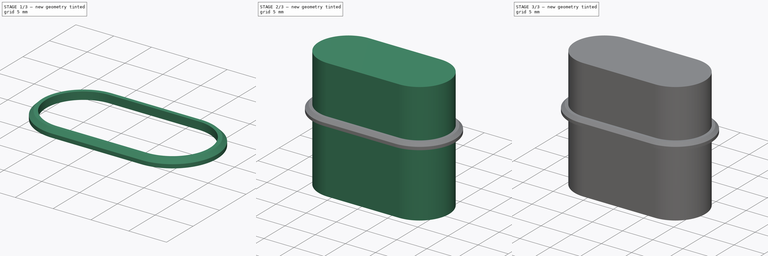
[diagram: build sequence overview — one tinted view per stage of 3, left to right]
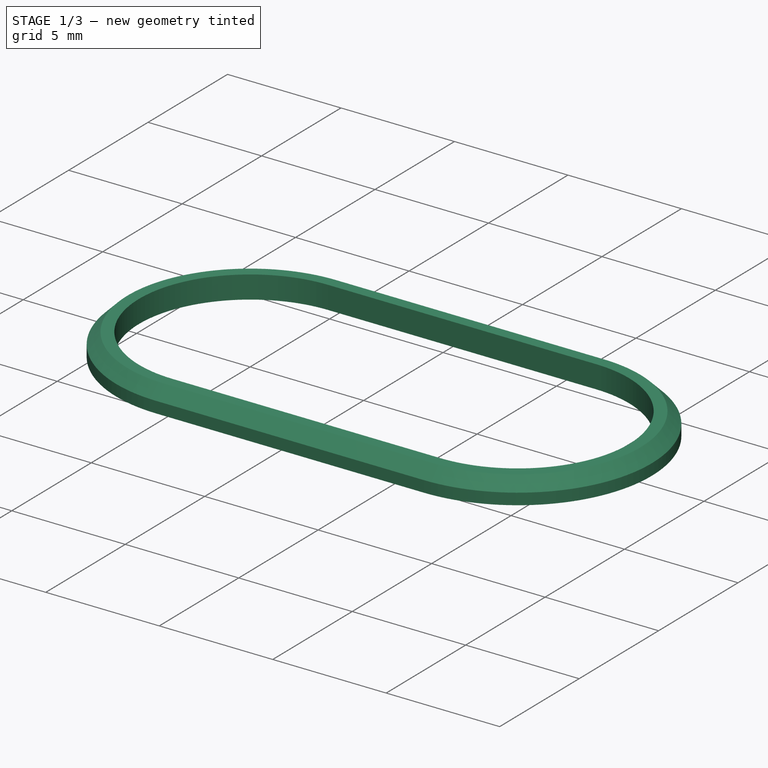
[diagram: stage 1 of 3 — iso view after this stage's code; geometry added in this stage tinted green]
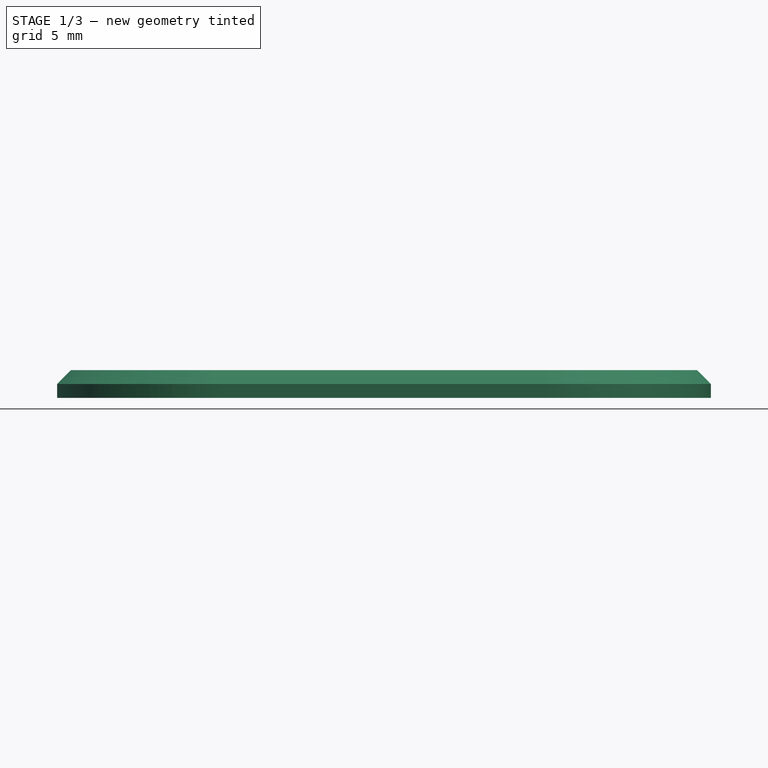
[diagram: stage 1 of 3 — front view after this stage's code; geometry added in this stage tinted green]
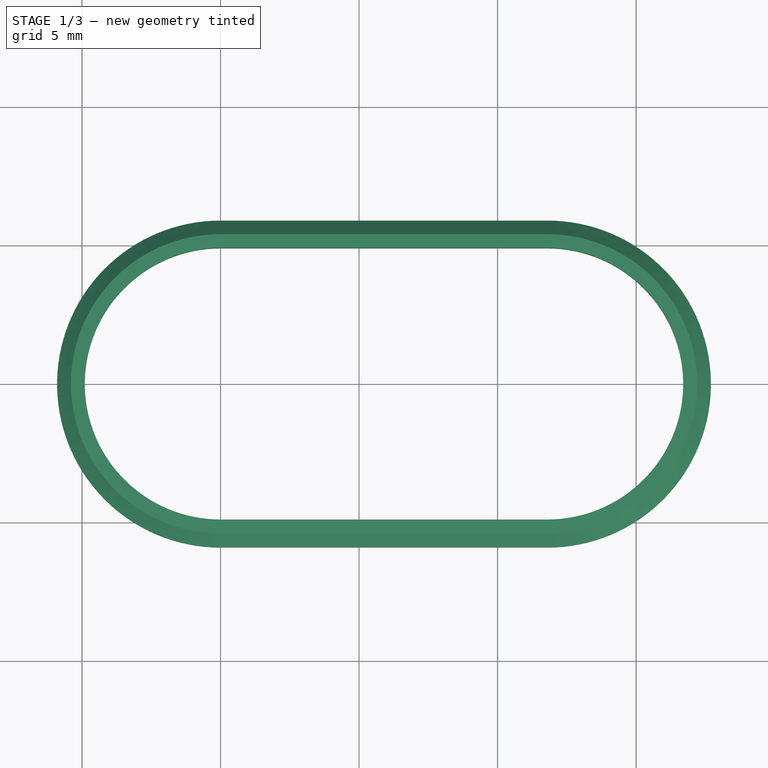
[diagram: stage 1 of 3 — top view after this stage's code; geometry added in this stage tinted green]
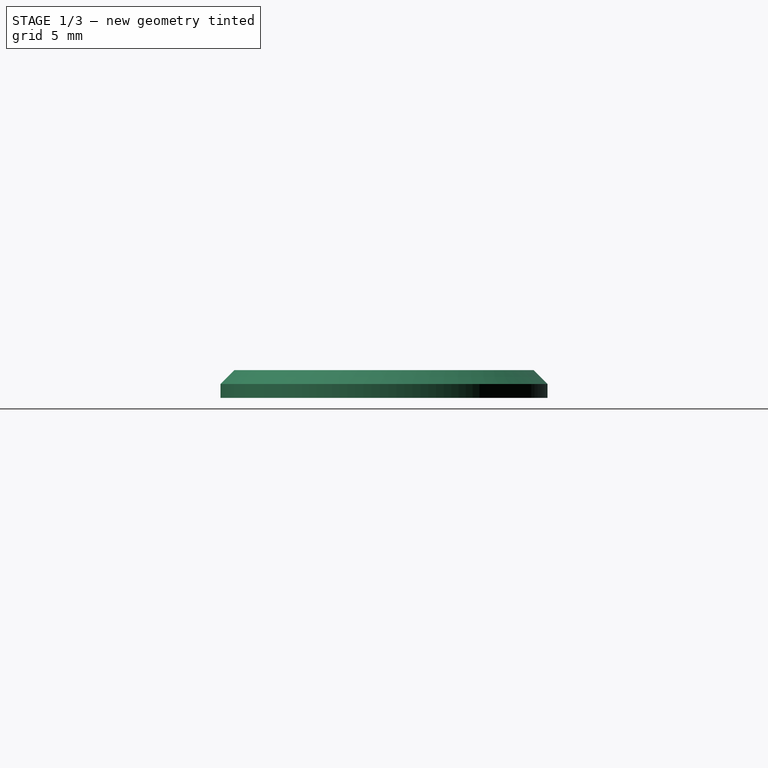
[diagram: stage 1 of 3 — right view after this stage's code; geometry added in this stage tinted green]
FCSTD DOCUMENT  (FreeCAD 0.16R6712 (Git))
Label: response-led-cap
License: All rights reserved
LicenseURL: http://en.wikipedia.org/wiki/All_rights_reserved
objects: Sketcher::SketchObject×4, PartDesign::Pad×2, PartDesign::Pocket×1, PartDesign::Chamfer×1, Part::MultiFuse×1
note: 12 computed .brp shape members not serialized (recipe doc carries the construction recipe); baked Part::Feature solids carry a one-line shape summary decoded from their .brp

FEATURE [Sketcher::SketchObject] Sketch002
  ExternalGeometry = -> [Pocket]
  Placement = pos=(0,0,20) rot=(0,0,1;0rad)
  Support = -> Pocket [Face5]
  constraints (2):
    c: DistanceX(g-1,g-5) = 11.8
    c: DistanceY(g-4,g-3) = 9.8
FEATURE [Sketcher::SketchObject] Sketch003
  Placement = pos=(0,0,11) rot=(0,0,1;0rad)
  sketch-geometry (8):
    g0: ArcOfCircle CenterX=0 CenterY=0 CenterZ=0 NormalX=0 NormalY=0 NormalZ=1 Radius=4.9 StartAngle=1.5708 EndAngle=4.71239
    g1: ArcOfCircle CenterX=11.8 CenterY=0 CenterZ=0 NormalX=0 NormalY=0 NormalZ=1 Radius=4.9 StartAngle=4.71239 EndAngle=7.85398
    g2: LineSegment StartX=0 StartY=-4.9 StartZ=0 EndX=11.8 EndY=-4.9 EndZ=0
    g3: LineSegment StartX=0 StartY=4.9 StartZ=0 EndX=11.8 EndY=4.9 EndZ=0
    g4: ArcOfCircle CenterX=0 CenterY=0 CenterZ=0 NormalX=0 NormalY=0 NormalZ=1 Radius=5.9 StartAngle=1.5708 EndAngle=4.71239
    g5: ArcOfCircle CenterX=11.8 CenterY=0 CenterZ=0 NormalX=0 NormalY=0 NormalZ=1 Radius=5.9 StartAngle=4.71239 EndAngle=7.85398
    g6: LineSegment StartX=0 StartY=-5.9 StartZ=0 EndX=11.8 EndY=-5.9 EndZ=0
    g7: LineSegment StartX=0 StartY=5.9 StartZ=0 EndX=11.8 EndY=5.9 EndZ=0
  constraints (18):
    c: Tangent(g0,g3) = 1.5708
    c: Tangent(g0,g2) = -1.5708
    c: Tangent(g2,g1) = -1.5708
    c: Tangent(g3,g1) = 1.5708
    c: Horizontal(g2)
    c: Equal(g0,g1)
    c: Coincident(g0,g-1)
    c: DistanceX(g-1,g1) = 11.8
    c: DistanceY(g0,g0) = 9.8
    c: Tangent(g4,g7) = 1.5708
    c: Tangent(g4,g6) = -1.5708
    c: Tangent(g6,g5) = -1.5708
    c: Tangent(g7,g5) = 1.5708
    c: Horizontal(g6)
    c: Equal(g4,g5)
    c: Coincident(g4,g-1)
    c: DistanceY(g0,g4) = 1
    c: Coincident(g5,g1)
FEATURE [PartDesign::Pad] Pad001
  Length = 1
  Length2 = 100
  Placement = pos=(0,0,11) rot=(0,0,1;0rad)
  Sketch = -> Sketch003
  Type = 0
FEATURE [PartDesign::Chamfer] Chamfer
  Base = -> Pad001 [Edge7,Edge4,Edge10,Edge12]
  Placement = pos=(0,0,11) rot=(0,0,1;0rad)
  Size = 0.5
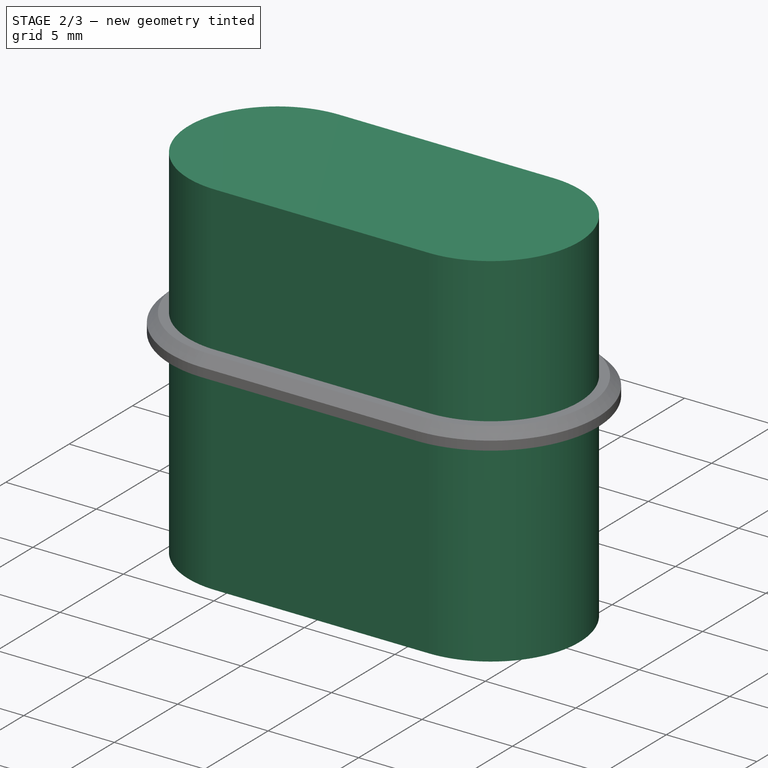
[diagram: stage 2 of 3 — iso view after this stage's code; geometry added in this stage tinted green]
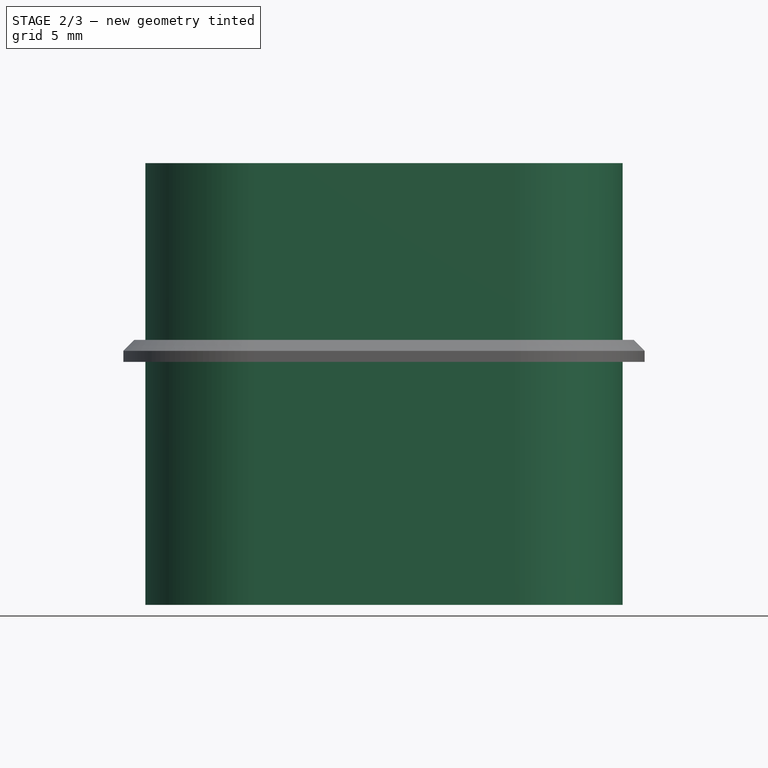
[diagram: stage 2 of 3 — front view after this stage's code; geometry added in this stage tinted green]
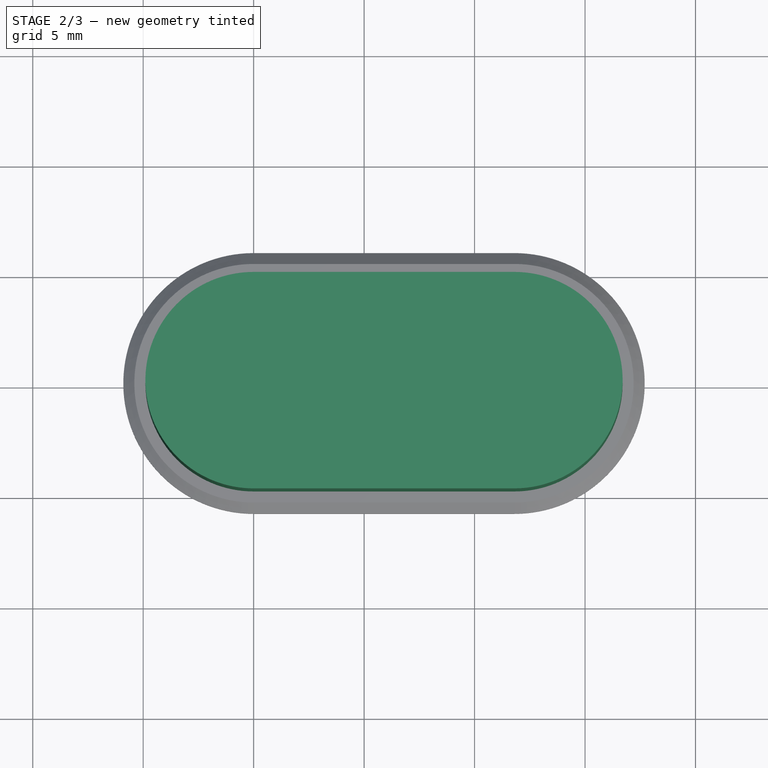
[diagram: stage 2 of 3 — top view after this stage's code; geometry added in this stage tinted green]
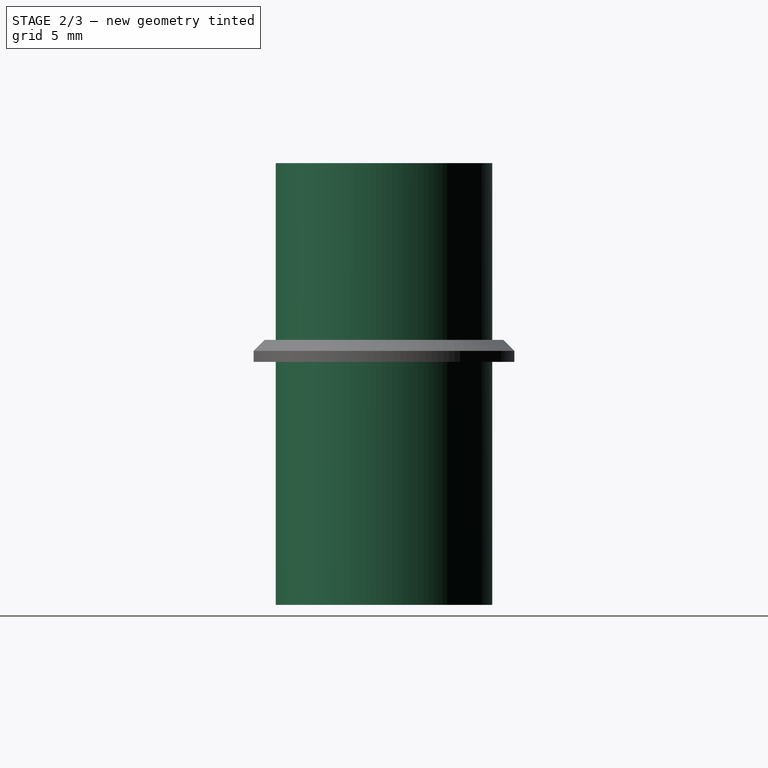
[diagram: stage 2 of 3 — right view after this stage's code; geometry added in this stage tinted green]
FEATURE [Sketcher::SketchObject] Sketch
  sketch-geometry (4):
    g0: ArcOfCircle CenterX=0 CenterY=0 CenterZ=0 NormalX=0 NormalY=0 NormalZ=1 Radius=4.9 StartAngle=1.5708 EndAngle=4.71239
    g1: ArcOfCircle CenterX=11.8 CenterY=0 CenterZ=0 NormalX=0 NormalY=0 NormalZ=1 Radius=4.9 StartAngle=4.71239 EndAngle=7.85398
    g2: LineSegment StartX=0 StartY=-4.9 StartZ=0 EndX=11.8 EndY=-4.9 EndZ=0
    g3: LineSegment StartX=-1e-12 StartY=4.9 StartZ=0 EndX=11.8 EndY=4.9 EndZ=0
  constraints (9):
    c: Tangent(g0,g3) = 1.5708
    c: Tangent(g0,g2) = -1.5708
    c: Tangent(g2,g1) = -1.5708
    c: Tangent(g3,g1) = 1.5708
    c: Horizontal(g2)
    c: Equal(g0,g1)
    c: Coincident(g0,g-1)
    c: DistanceY(g0,g0) = 9.8
    c: DistanceX(g-1,g1) = 11.8
FEATURE [PartDesign::Pad] Pad
  Length = 20
  Length2 = 100
  Sketch = -> Sketch
  Type = 0
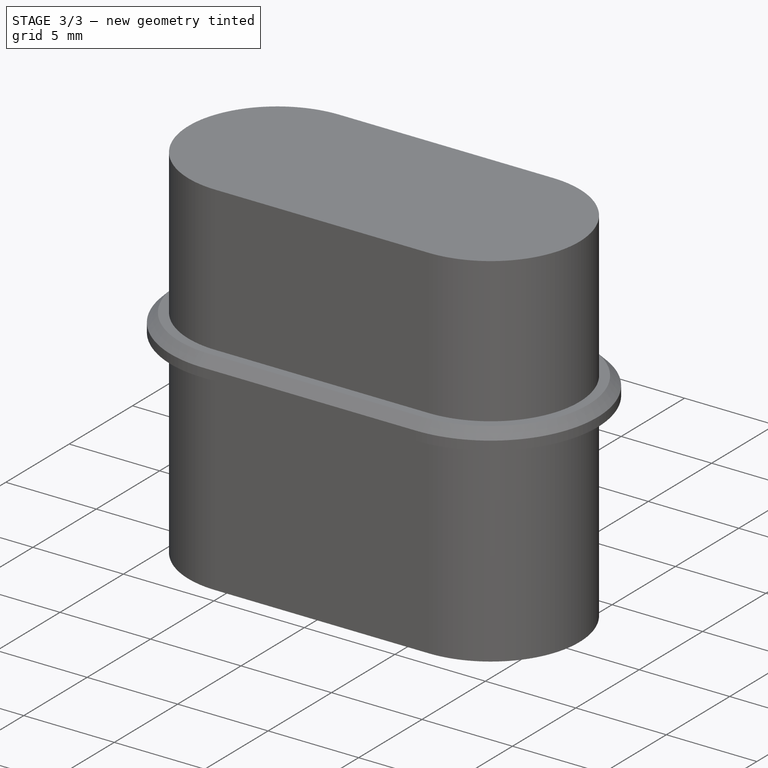
[diagram: stage 3 of 3 — iso view after this stage's code; geometry added in this stage tinted green]
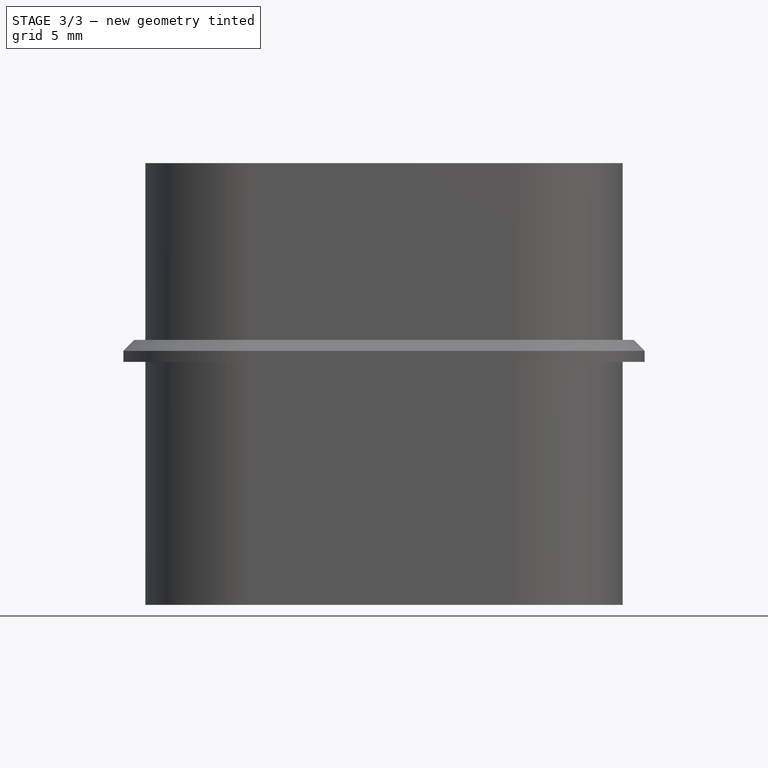
[diagram: stage 3 of 3 — front view after this stage's code; geometry added in this stage tinted green]
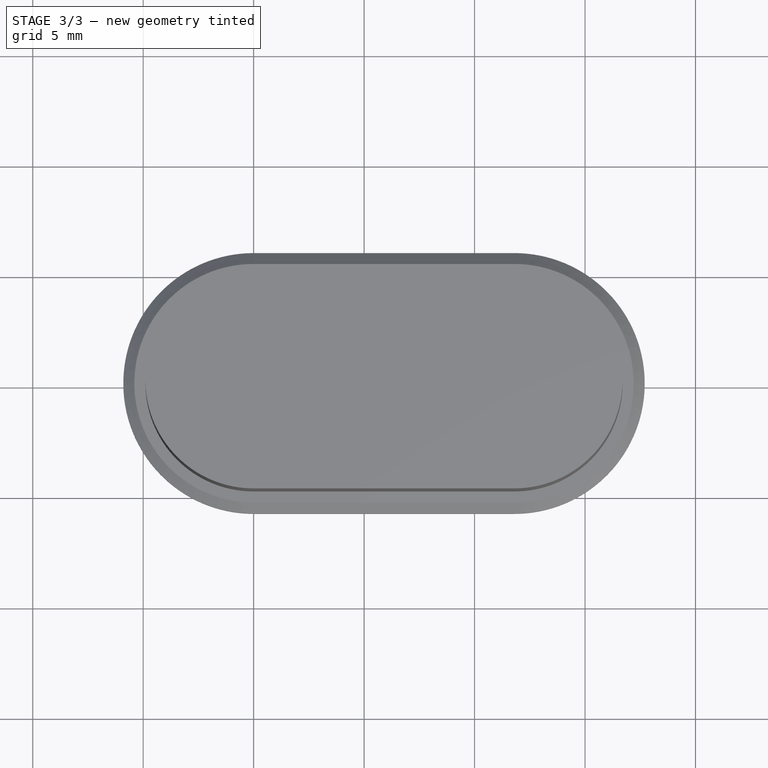
[diagram: stage 3 of 3 — top view after this stage's code; geometry added in this stage tinted green]
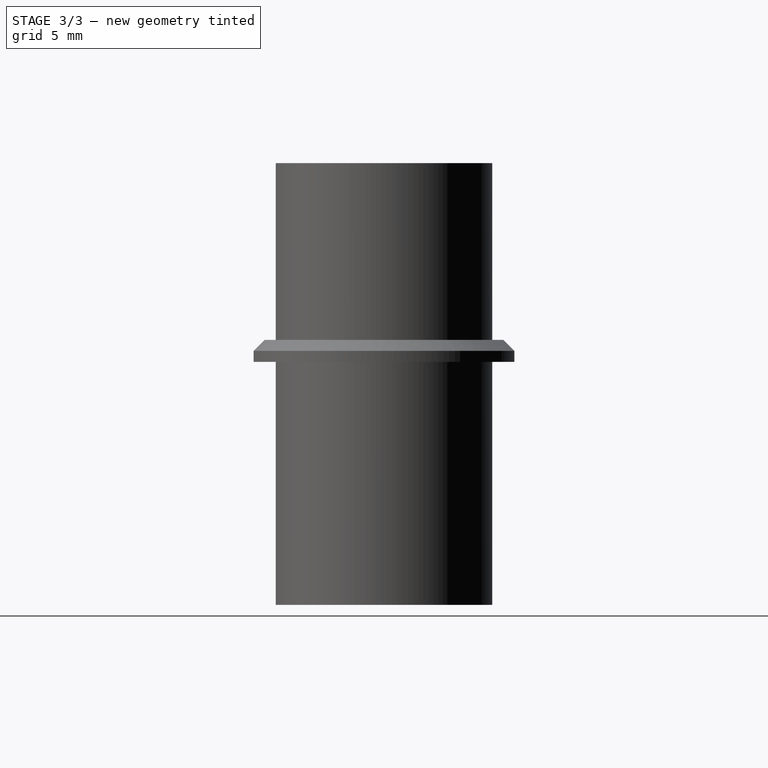
[diagram: stage 3 of 3 — right view after this stage's code; geometry added in this stage tinted green]
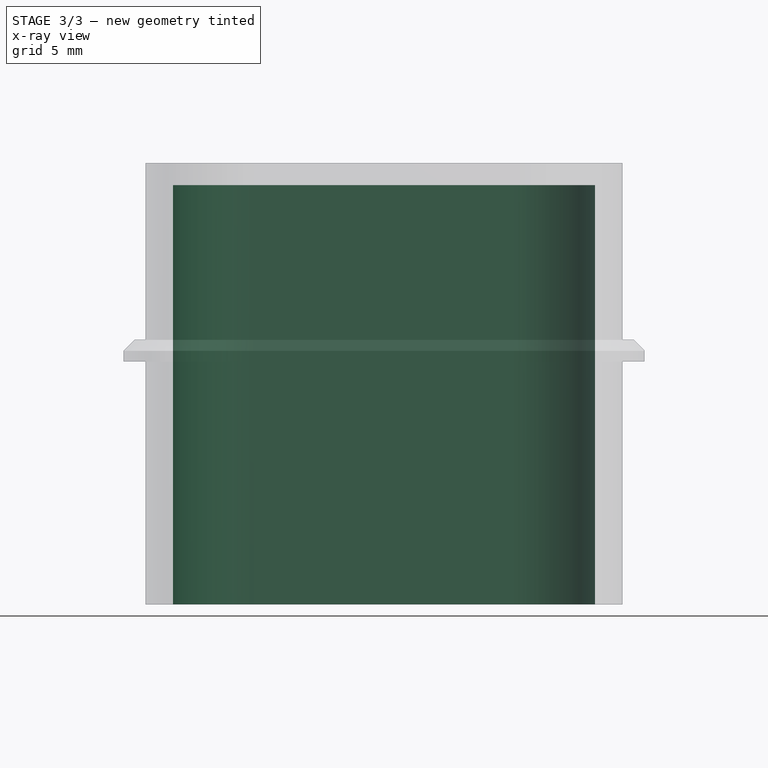
[diagram: stage 3 of 3 — x-ray composite at the front view; earlier geometry ghosted, this stage's added geometry solid]
FEATURE [Sketcher::SketchObject] Sketch001
  ExternalGeometry = -> [Pad]
  Placement = pos=(0,0,0) rot=(1,0,0;3.14159rad)
  Support = -> Pad [Face5]
  sketch-geometry (4):
    g0: ArcOfCircle CenterX=0 CenterY=0 CenterZ=0 NormalX=0 NormalY=0 NormalZ=1 Radius=3.65 StartAngle=1.5708 EndAngle=4.71239
    g1: ArcOfCircle CenterX=11.8 CenterY=0 CenterZ=0 NormalX=0 NormalY=0 NormalZ=1 Radius=3.65 StartAngle=4.71239 EndAngle=7.85398
    g2: LineSegment StartX=0 StartY=-3.65 StartZ=0 EndX=11.8 EndY=-3.65 EndZ=0
    g3: LineSegment StartX=0 StartY=3.65 StartZ=0 EndX=11.8 EndY=3.65 EndZ=0
  constraints (9):
    c: Tangent(g0,g3) = 1.5708
    c: Tangent(g0,g2) = -1.5708
    c: Tangent(g2,g1) = -1.5708
    c: Tangent(g3,g1) = 1.5708
    c: Horizontal(g2)
    c: Equal(g0,g1)
    c: Coincident(g0,g-1)
    c: DistanceY(g0,g0) = 7.3
    c: Coincident(g-4,g1)
FEATURE [PartDesign::Pocket] Pocket
  Length = 19
  Sketch = -> Sketch001
  Type = 0
FEATURE [Part::MultiFuse] Fusion
  Shapes = -> [Pocket,Chamfer]
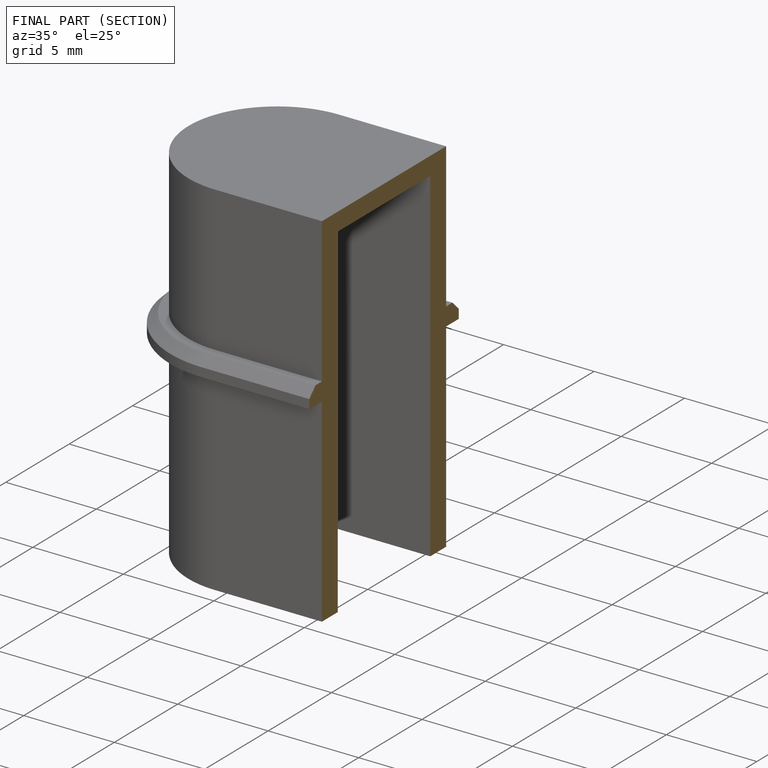
[diagram: finished part — half-section view (interior)]
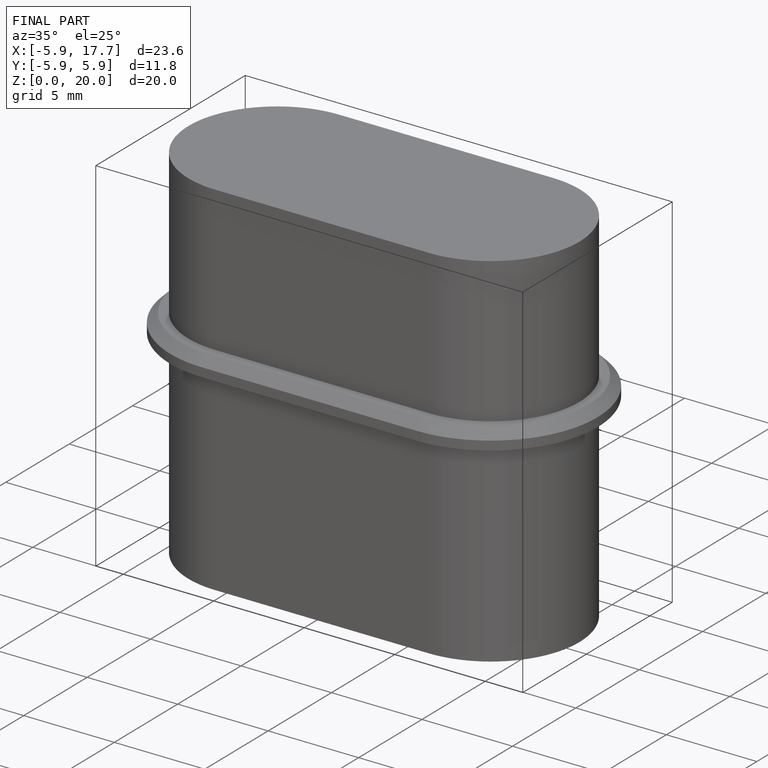
[diagram: finished part — iso view with bounding-box wireframe]
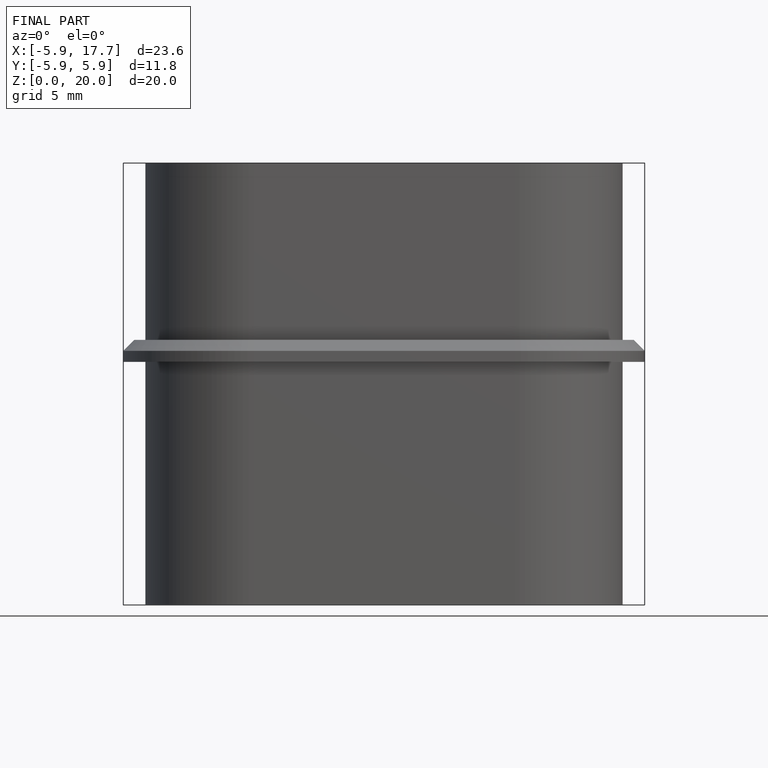
[diagram: finished part — front view with bounding-box wireframe]
